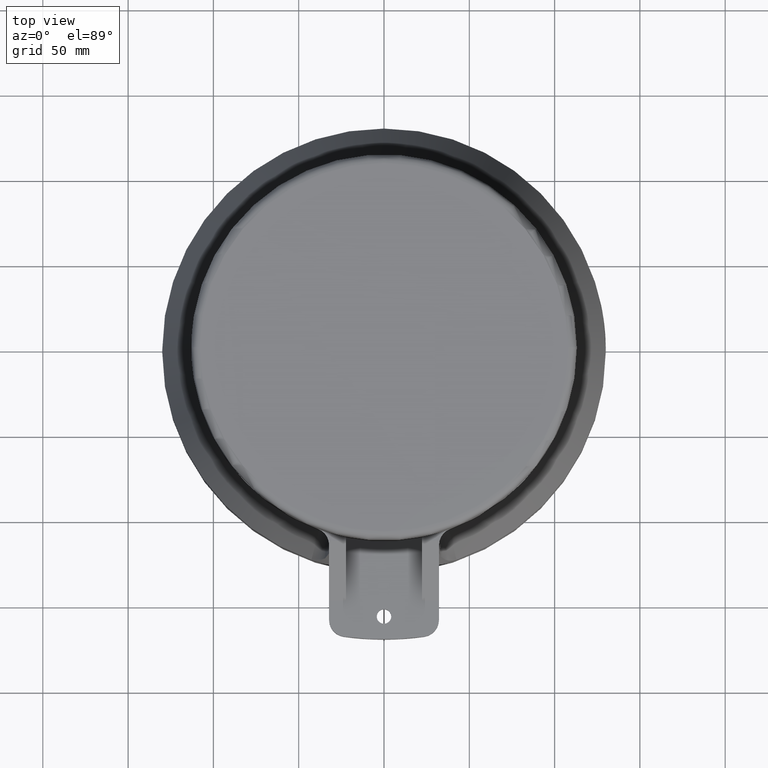
[diagram: clean part render]
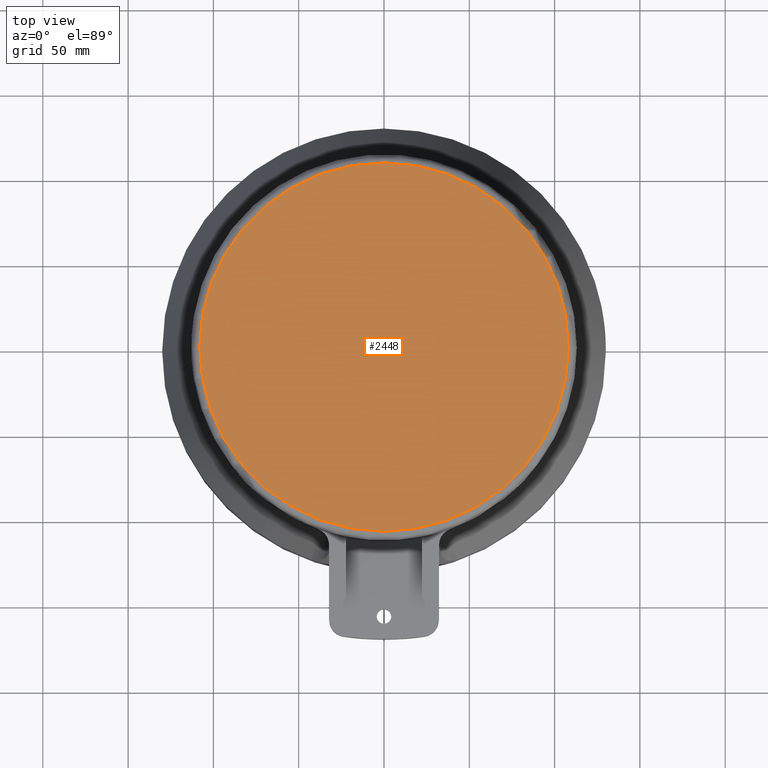
[diagram: same view with one face highlighted and labeled with its STEP entity id]
A machine part, top view. The second image highlights one B-rep face of the part: STEP entity #2448.
In plain terms, the highlighted planar face has unit normal (0, 0, 1).
Its self-contained STEP definition (entity closure, byte-faithful):
#1083=CARTESIAN_POINT('',(0.E0,0.E0,2.842170943040E-14));
#1084=DIRECTION('',(0.E0,0.E0,1.E0));
#1085=DIRECTION('',(-1.E0,0.E0,0.E0));
#1086=AXIS2_PLACEMENT_3D('',#1083,#1084,#1085);
#1088=CARTESIAN_POINT('',(0.E0,0.E0,2.842170943040E-14));
#1089=DIRECTION('',(0.E0,0.E0,1.E0));
#1090=DIRECTION('',(1.E0,0.E0,0.E0));
#1091=AXIS2_PLACEMENT_3D('',#1088,#1089,#1090);
#1692=CARTESIAN_POINT('',(-1.08E2,0.E0,0.E0));
#1693=CARTESIAN_POINT('',(1.08E2,-1.322618543079E-14,4.826098757659E-14));
#1694=VERTEX_POINT('',#1692);
#1695=VERTEX_POINT('',#1693);
#2438=CARTESIAN_POINT('',(0.E0,0.E0,2.842170943040E-14));
#2439=DIRECTION('',(0.E0,0.E0,1.E0));
#2440=DIRECTION('',(-1.E0,0.E0,0.E0));
#2441=AXIS2_PLACEMENT_3D('',#2438,#2439,#2440);
#2442=PLANE('',#2441);
#2443=ORIENTED_EDGE('',*,*,#2428,.F.);
#2445=ORIENTED_EDGE('',*,*,#2444,.F.);
#2446=EDGE_LOOP('',(#2443,#2445));
#2447=FACE_OUTER_BOUND('',#2446,.F.);
#1087=CIRCLE('',#1086,1.08E2);
#1092=CIRCLE('',#1091,1.08E2);
#2428=EDGE_CURVE('',#1694,#1695,#1087,.T.);
#2444=EDGE_CURVE('',#1695,#1694,#1092,.T.);
#2448=ADVANCED_FACE('',(#2447),#2442,.T.);